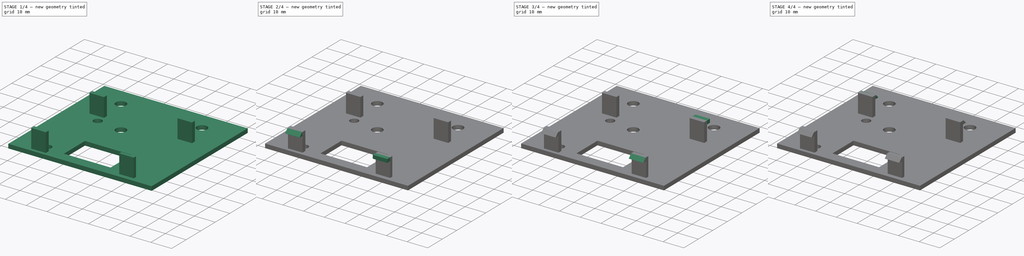
[diagram: build sequence overview — one tinted view per stage of 4, left to right]
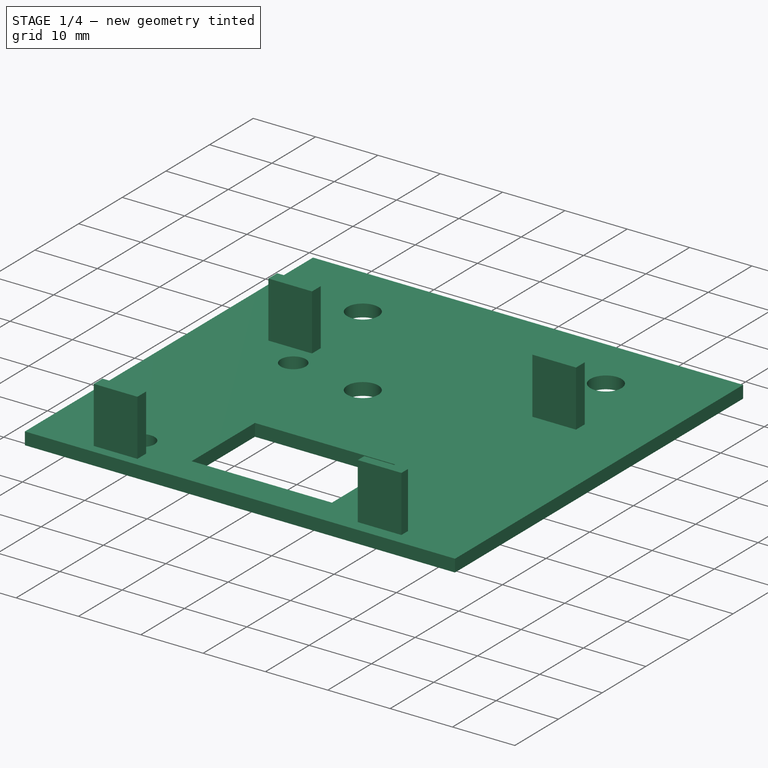
[diagram: stage 1 of 4 — iso view after this stage's code; geometry added in this stage tinted green]
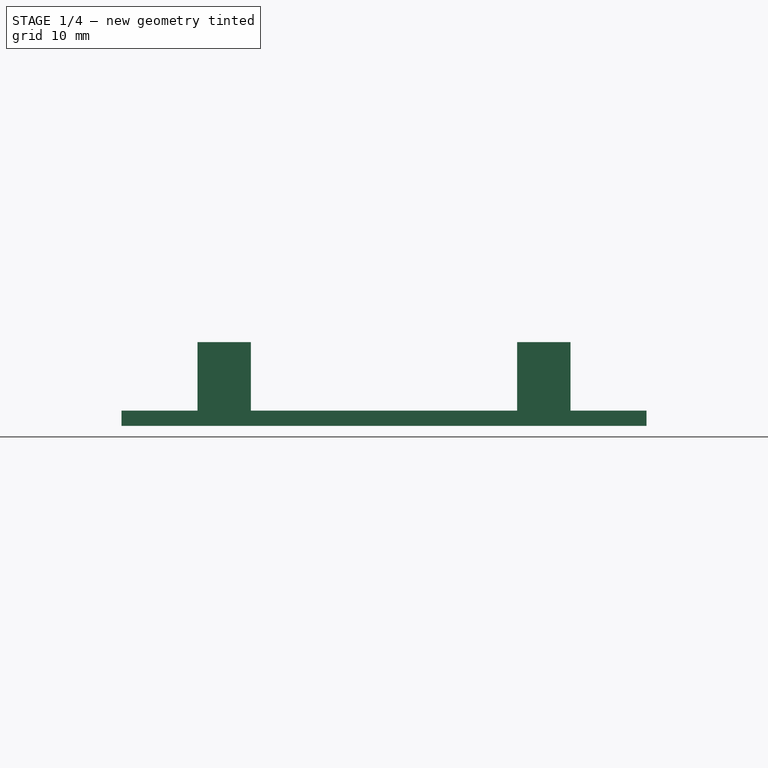
[diagram: stage 1 of 4 — front view after this stage's code; geometry added in this stage tinted green]
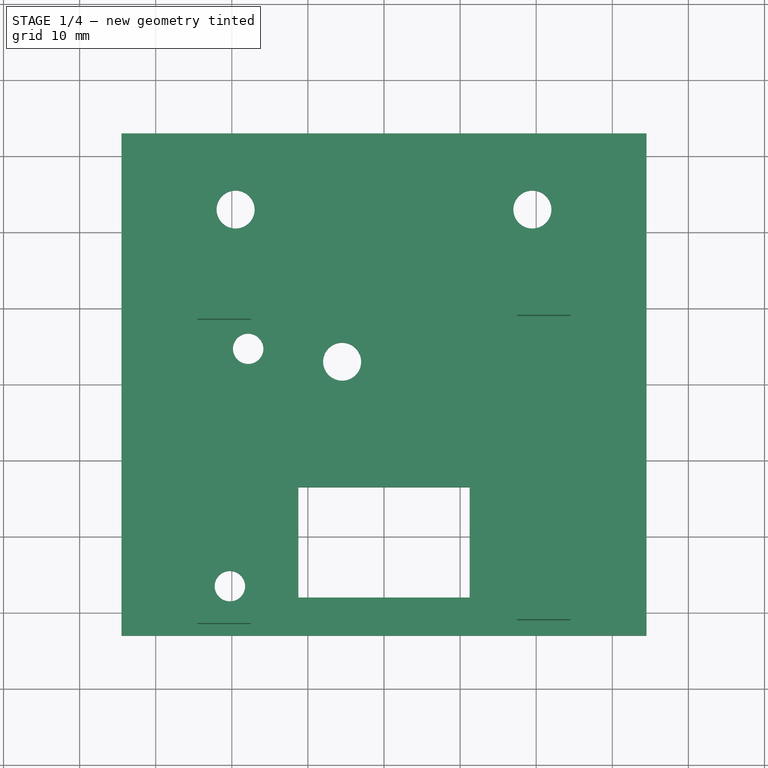
[diagram: stage 1 of 4 — top view after this stage's code; geometry added in this stage tinted green]
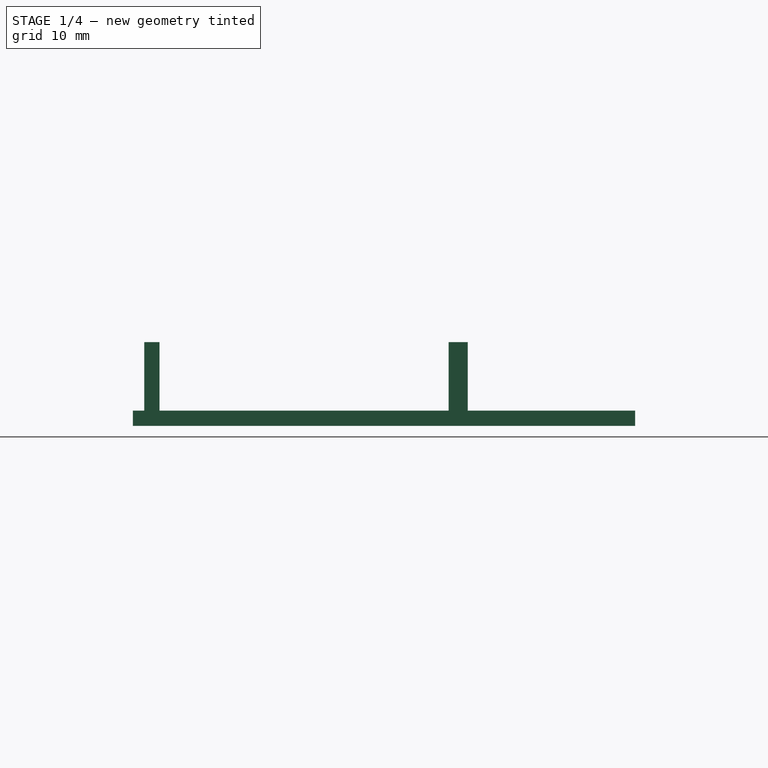
[diagram: stage 1 of 4 — right view after this stage's code; geometry added in this stage tinted green]
FCSTD DOCUMENT  (FreeCAD 0.18R4 (GitTag))
Label: Top Mounting Bracket
License: All rights reserved
LicenseURL: http://en.wikipedia.org/wiki/All_rights_reserved
objects: Sketcher::SketchObject×7, PartDesign::Pad×6, PartDesign::Chamfer×4, PartDesign::Pocket×1, PartDesign::Body×1
note: 26 computed .brp shape members not serialized (recipe doc carries the construction recipe); baked Part::Feature solids carry a one-line shape summary decoded from their .brp

FEATURE [Sketcher::SketchObject] Sketch  label="top_with_holes_Sketch"
  MapMode = 5
  Support = -> [XY_Plane]
  sketch-geometry (12):
    g0: LineSegment StartX=-34.5 StartY=33 StartZ=0 EndX=34.5 EndY=33 EndZ=0
    g1: LineSegment StartX=34.5 StartY=33 StartZ=0 EndX=34.5 EndY=-33 EndZ=0
    g2: LineSegment StartX=34.5 StartY=-33 StartZ=0 EndX=-34.5 EndY=-33 EndZ=0
    g3: LineSegment StartX=-34.5 StartY=-33 StartZ=0 EndX=-34.5 EndY=33 EndZ=0
    g4: Circle CenterX=-19.5 CenterY=23 CenterZ=0 NormalX=0 NormalY=0 NormalZ=1 AngleXU=0 Radius=2.5
    g5: Circle CenterX=19.5 CenterY=23 CenterZ=0 NormalX=0 NormalY=0 NormalZ=1 AngleXU=0 Radius=2.5
    g6: LineSegment StartX=-11.25 StartY=-13.5 StartZ=0 EndX=11.25 EndY=-13.5 EndZ=0
    g7: LineSegment StartX=11.25 StartY=-13.5 StartZ=0 EndX=11.25 EndY=-28 EndZ=0
    g8: LineSegment StartX=11.25 StartY=-28 StartZ=0 EndX=-11.25 EndY=-28 EndZ=0
    g9: LineSegment StartX=-11.25 StartY=-28 StartZ=0 EndX=-11.25 EndY=-13.5 EndZ=0
    g10: Circle CenterX=-20.25 CenterY=-26.5 CenterZ=0 NormalX=0 NormalY=0 NormalZ=1 AngleXU=0 Radius=2
    g11: Circle CenterX=-17.85 CenterY=4.7 CenterZ=0 NormalX=0 NormalY=0 NormalZ=1 AngleXU=0 Radius=2
  constraints (34):
    c: Coincident(g0,g1)
    c: Coincident(g1,g2)
    c: Coincident(g2,g3)
    c: Coincident(g3,g0)
    c: Diameter(g5) = 5
    c: Diameter(g4) = 5
    c: DistanceX(g0,g4) = 15
    c: DistanceY(g4,g0) = 10
    c: DistanceY(g5,g0) = 10
    c: DistanceX(g2,g1) = 69
    c: DistanceY(g1,g0) = 66
    c: DistanceX(g5,g0) = 15
    c: Coincident(g6,g7)
    c: Coincident(g7,g8)
    c: Coincident(g8,g9)
    c: Coincident(g9,g6)
    c: Horizontal(g6)
    c: Vertical(g7)
    c: DistanceX(g6,g6) = 22.5
    c: DistanceY(g7,g7) = 14.5
    c: DistanceX(g7,g1) = 23.25
    c: DistanceY(g2,g8) = 5
    c: Symmetric(g2,g1,g-2)
    c: Equal(g9,g7)
    c: Equal(g6,g8)
    c: Equal(g3,g1)
    c: Equal(g0,g2)
    c: Symmetric(g0,g2,g-1)
    c: Diameter(g10) = 4
    c: DistanceY(g2,g10) = 6.5
    c: DistanceX(g10,g8) = 9
    c: DistanceY(g6,g11) = 18.2
    c: DistanceX(g11,g6) = 6.6
    c: Diameter(g11) = 4
FEATURE [PartDesign::Pad] Pad
  Length = 2
  Length2 = 100
  Profile = -> Sketch
  Type = 0
FEATURE [Sketcher::SketchObject] Sketch011  label="Voltage Adjustment"
  MapMode = 5
  Placement = pos=(0,0,2) rot=(0,0,1;0rad)
  sketch-geometry (1):
    g0: Circle CenterX=-5.5 CenterY=3 CenterZ=0 NormalX=0 NormalY=0 NormalZ=1 AngleXU=0 Radius=2.5
  constraints (1):
    c: Diameter(g0) = 5
FEATURE [PartDesign::Pocket] Pocket  label="V_Adj_hole"
  BaseFeature = -> Pad
  Length = 2
  Length2 = 100
  Profile = -> Sketch011
  Type = 0
FEATURE [Sketcher::SketchObject] Sketch012  label="Clip Risers"
  ExternalGeometry = -> [Pocket]
  MapMode = 5
  Placement = pos=(0,0,2) rot=(0,0,1;0rad)
  Support = -> [Pocket]
  sketch-geometry (16):
    g0: LineSegment StartX=-24.5 StartY=10.5 StartZ=0 EndX=-17.5 EndY=10.5 EndZ=0
    g1: LineSegment StartX=-17.5 StartY=10.5 StartZ=0 EndX=-17.5 EndY=8.5 EndZ=0
    g2: LineSegment StartX=-17.5 StartY=8.5 StartZ=0 EndX=-24.5 EndY=8.5 EndZ=0
    g3: LineSegment StartX=-24.5 StartY=8.5 StartZ=0 EndX=-24.5 EndY=10.5 EndZ=0
    g4: LineSegment StartX=17.5 StartY=-29.5 StartZ=0 EndX=24.5 EndY=-29.5 EndZ=0
    g5: LineSegment StartX=24.5 StartY=-29.5 StartZ=0 EndX=24.5 EndY=-31 EndZ=0
    g6: LineSegment StartX=24.5 StartY=-31 StartZ=0 EndX=17.5 EndY=-31 EndZ=0
    g7: LineSegment StartX=17.5 StartY=-31 StartZ=0 EndX=17.5 EndY=-29.5 EndZ=0
    g8: LineSegment StartX=17.5 StartY=11 StartZ=0 EndX=24.5 EndY=11 EndZ=0
    g9: LineSegment StartX=24.5 StartY=11 StartZ=0 EndX=24.5 EndY=9 EndZ=0
    g10: LineSegment StartX=24.5 StartY=9 StartZ=0 EndX=17.5 EndY=9 EndZ=0
    g11: LineSegment StartX=17.5 StartY=9 StartZ=0 EndX=17.5 EndY=11 EndZ=0
    g12: LineSegment StartX=-24.5 StartY=-29.5 StartZ=0 EndX=-17.5 EndY=-29.5 EndZ=0
    g13: LineSegment StartX=-17.5 StartY=-29.5 StartZ=0 EndX=-17.5 EndY=-31.5 EndZ=0
    g14: LineSegment StartX=-17.5 StartY=-31.5 StartZ=0 EndX=-24.5 EndY=-31.5 EndZ=0
    g15: LineSegment StartX=-24.5 StartY=-31.5 StartZ=0 EndX=-24.5 EndY=-29.5 EndZ=0
  constraints (49):
    c: Coincident(g0,g1)
    c: Coincident(g1,g2)
    c: Coincident(g2,g3)
    c: Coincident(g3,g0)
    c: Horizontal(g0)
    c: Horizontal(g2)
    c: Vertical(g1)
    c: Vertical(g3)
    c: DistanceX(g2,g2) = 7
    c: DistanceY(g1,g0) = 2
    c: Coincident(g4,g5)
    c: Coincident(g5,g6)
    c: Coincident(g6,g7)
    c: Coincident(g7,g4)
    c: Horizontal(g4)
    c: Horizontal(g6)
    c: Vertical(g5)
    c: Vertical(g7)
    c: Equal(g2,g6) = 8
    c: DistanceY(g5,g4) = 1.5
    c: Coincident(g8,g9)
    c: Coincident(g9,g10)
    c: Coincident(g10,g11)
    c: Coincident(g11,g8)
    c: Horizontal(g8)
    c: Horizontal(g10)
    c: Vertical(g9)
    c: Vertical(g11)
    c: Equal(g2,g10) = 8
    c: DistanceY(g9,g8) = 2
    c: Coincident(g12,g13)
    c: Coincident(g13,g14)
    c: Coincident(g14,g15)
    c: Coincident(g15,g12)
    c: Horizontal(g12)
    c: Horizontal(g14)
    c: Vertical(g13)
    c: Vertical(g15)
    c: Equal(g2,g14) = 8
    c: DistanceY(g13,g12) = 2
    c: DistanceY(g-4,g14) = 1.5
    c: DistanceY(g-5,g5) = 2
    c: DistanceY(g14,g0) = 42
    c: DistanceY(g5,g8) = 42
    c: DistanceX(g-4,g14) = 10
    c: DistanceX(g-5) = 34.5
    c: DistanceX(g4,g-5) = 10
    c: DistanceX(g9,g-5) = 10
    c: DistanceX(g-4,g0) = 10
FEATURE [PartDesign::Pad] Pad001
  BaseFeature = -> Pocket
  Length = 9
  Length2 = 100
  Profile = -> Sketch012
  Type = 0
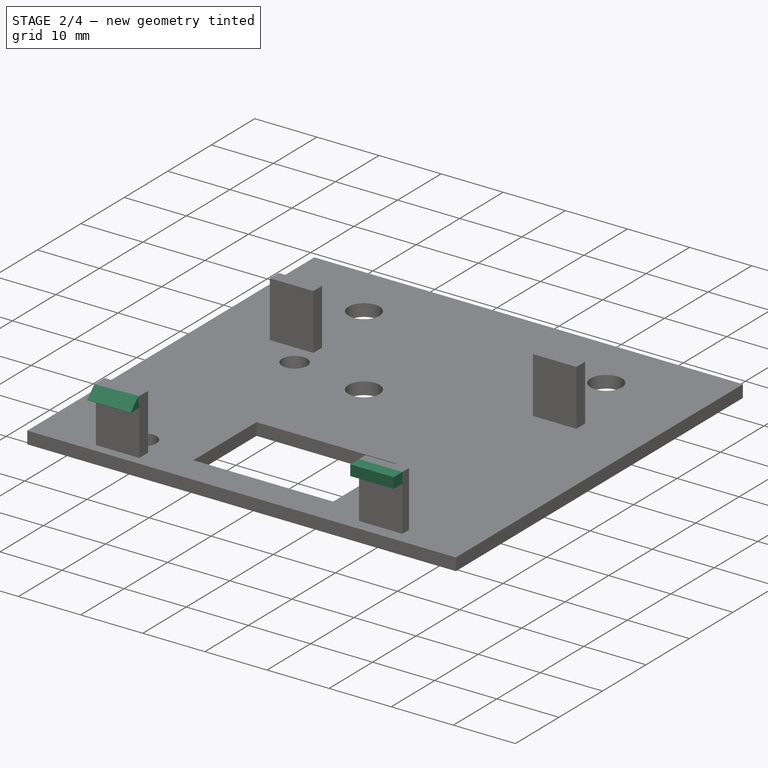
[diagram: stage 2 of 4 — iso view after this stage's code; geometry added in this stage tinted green]
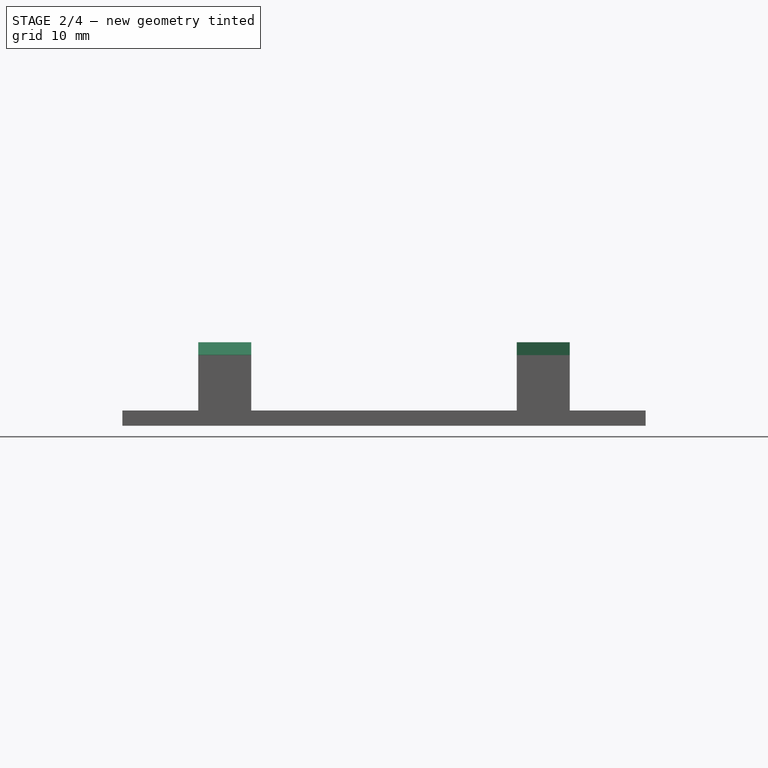
[diagram: stage 2 of 4 — front view after this stage's code; geometry added in this stage tinted green]
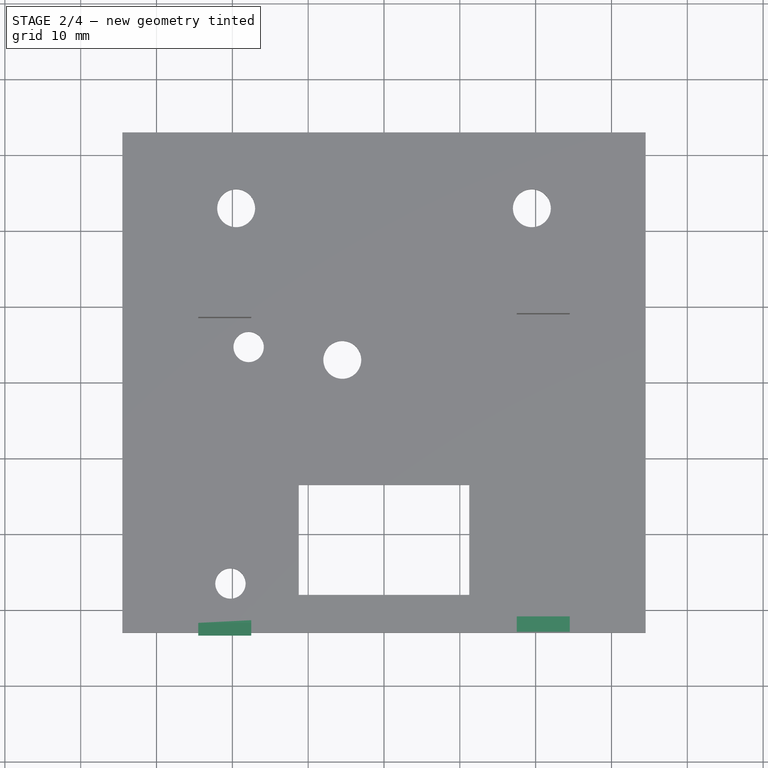
[diagram: stage 2 of 4 — top view after this stage's code; geometry added in this stage tinted green]
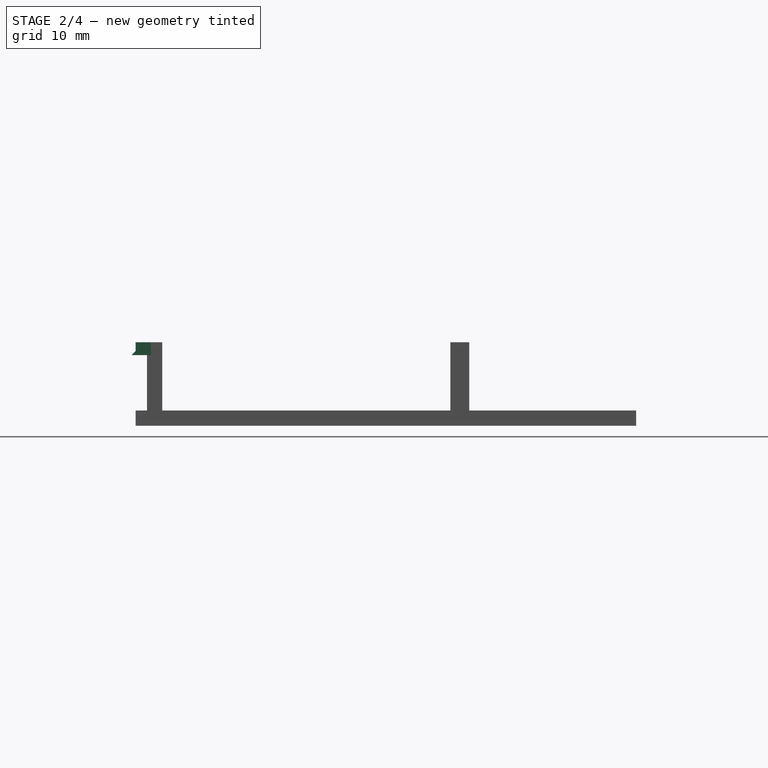
[diagram: stage 2 of 4 — right view after this stage's code; geometry added in this stage tinted green]
FEATURE [Sketcher::SketchObject] Sketch013  label="Front Left Snap"
  ExternalGeometry = -> [Pad001]
  MapMode = 5
  Placement = pos=(0,-31.5,0) rot=(1,0,0;1.5708rad)
  Support = -> [Pad001]
  sketch-geometry (4):
    g0: LineSegment StartX=-24.5 StartY=11 StartZ=0 EndX=-17.5 EndY=11 EndZ=0
    g1: LineSegment StartX=-17.5 StartY=11 StartZ=0 EndX=-17.5 EndY=9.3 EndZ=0
    g2: LineSegment StartX=-17.5 StartY=9.3 StartZ=0 EndX=-24.5 EndY=9.3 EndZ=0
    g3: LineSegment StartX=-24.5 StartY=9.3 StartZ=0 EndX=-24.5 EndY=11 EndZ=0
  constraints (10):
    c: Coincident(g0,g1)
    c: Coincident(g1,g2)
    c: Coincident(g2,g3)
    c: Coincident(g3,g0)
    c: Horizontal(g2)
    c: Vertical(g1)
    c: Vertical(g3)
    c: Coincident(g0,g-3)
    c: Coincident(g0,g-4)
    c: DistanceY(g1,g0) = 1.7
FEATURE [PartDesign::Pad] Pad002
  BaseFeature = -> Pad001
  Length = 2
  Length2 = 100
  Profile = -> Sketch013
  Type = 0
FEATURE [PartDesign::Chamfer] Chamfer
  Base = -> Pad002 [Edge98]
  BaseFeature = -> Pad002
  Size = 1.65
FEATURE [Sketcher::SketchObject] Sketch014  label="Front Right Snap"
  ExternalGeometry = -> [Chamfer]
  MapMode = 5
  Placement = pos=(0,-31,0) rot=(1,0,0;1.5708rad)
  Support = -> [Chamfer]
  sketch-geometry (4):
    g0: LineSegment StartX=17.5 StartY=11 StartZ=0 EndX=24.5 EndY=11 EndZ=0
    g1: LineSegment StartX=24.5 StartY=11 StartZ=0 EndX=24.5 EndY=9.3 EndZ=0
    g2: LineSegment StartX=24.5 StartY=9.3 StartZ=0 EndX=17.5 EndY=9.3 EndZ=0
    g3: LineSegment StartX=17.5 StartY=9.3 StartZ=0 EndX=17.5 EndY=11 EndZ=0
  constraints (10):
    c: Coincident(g0,g1)
    c: Coincident(g1,g2)
    c: Coincident(g2,g3)
    c: Coincident(g3,g0)
    c: Horizontal(g2)
    c: Vertical(g1)
    c: Vertical(g3)
    c: Coincident(g-4,g0)
    c: Coincident(g-3,g0)
    c: DistanceY(g3,g3) = 1.7
FEATURE [PartDesign::Pad] Pad003
  BaseFeature = -> Chamfer
  Length = 2
  Length2 = 100
  Profile = -> Sketch014
  Type = 0
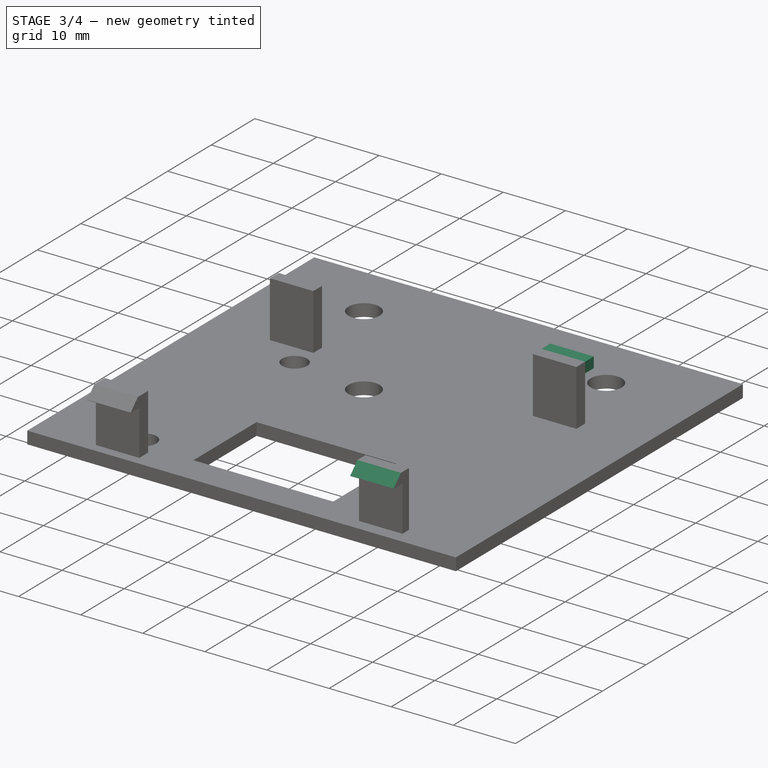
[diagram: stage 3 of 4 — iso view after this stage's code; geometry added in this stage tinted green]
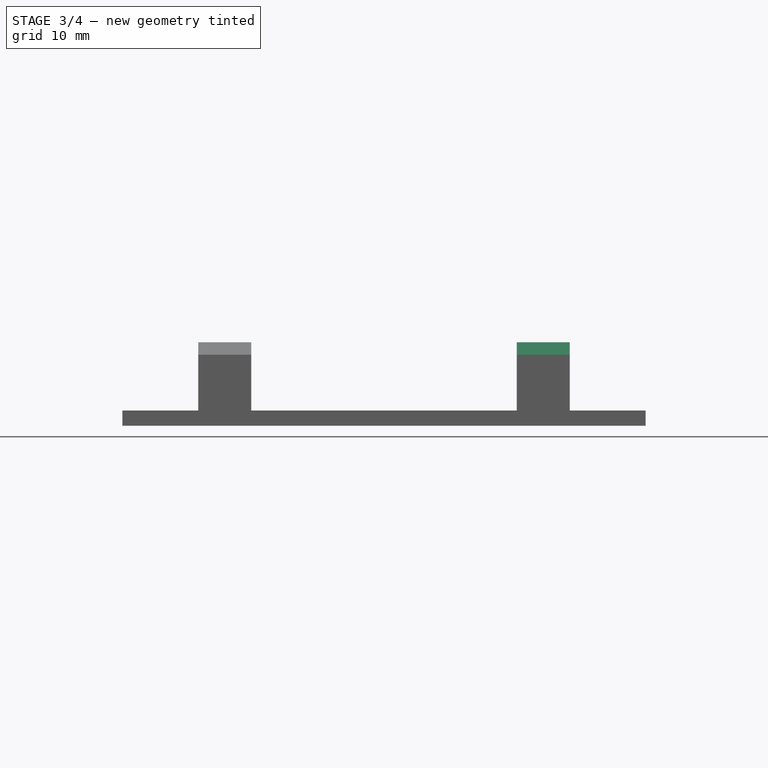
[diagram: stage 3 of 4 — front view after this stage's code; geometry added in this stage tinted green]
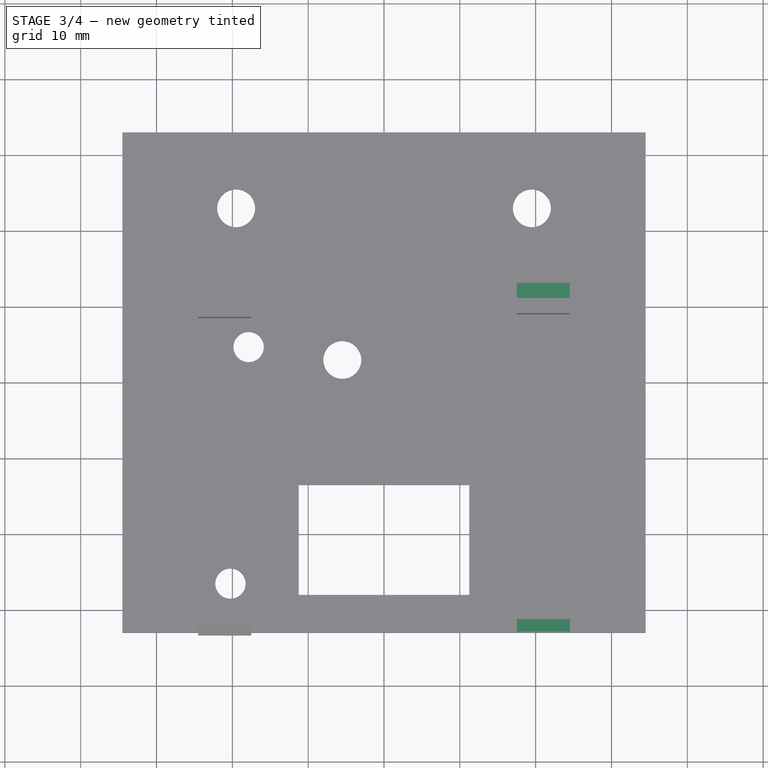
[diagram: stage 3 of 4 — top view after this stage's code; geometry added in this stage tinted green]
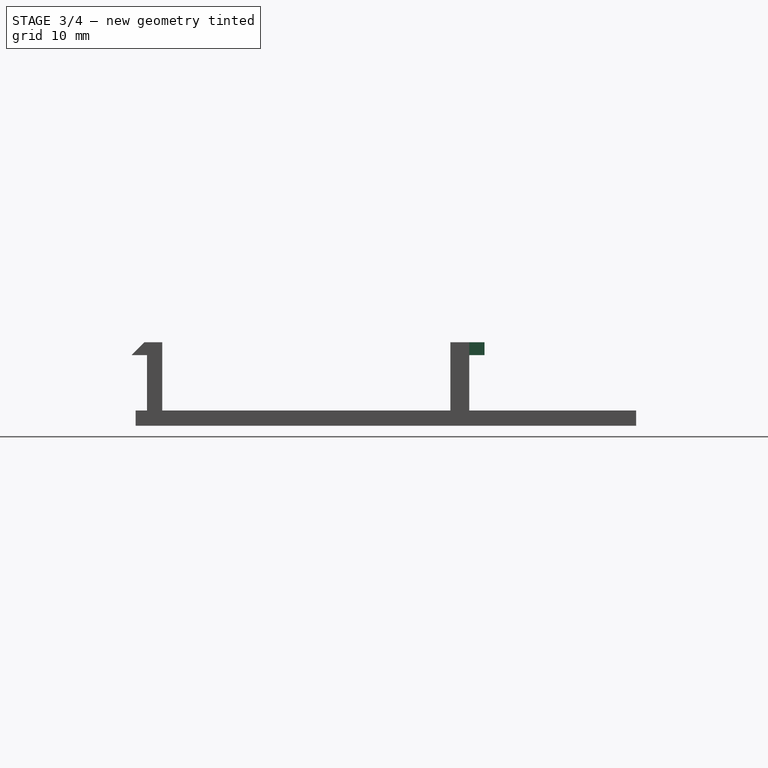
[diagram: stage 3 of 4 — right view after this stage's code; geometry added in this stage tinted green]
FEATURE [PartDesign::Chamfer] Chamfer001
  Base = -> Pad003 [Edge112]
  BaseFeature = -> Pad003
  Size = 1.65
FEATURE [Sketcher::SketchObject] Sketch015  label="Rear Left Snap"
  ExternalGeometry = -> [Pad001]
  MapMode = 5
  Placement = pos=(0,11,0) rot=(0,0.707107,0.707107;3.14159rad)
  Support = -> [Pad001]
  sketch-geometry (4):
    g0: LineSegment StartX=-24.5 StartY=11 StartZ=0 EndX=-17.5 EndY=11 EndZ=0
    g1: LineSegment StartX=-17.5 StartY=11 StartZ=0 EndX=-17.5 EndY=9.3 EndZ=0
    g2: LineSegment StartX=-17.5 StartY=9.3 StartZ=0 EndX=-24.5 EndY=9.3 EndZ=0
    g3: LineSegment StartX=-24.5 StartY=9.3 StartZ=0 EndX=-24.5 EndY=11 EndZ=0
  constraints (10):
    c: Coincident(g0,g1)
    c: Coincident(g1,g2)
    c: Coincident(g2,g3)
    c: Coincident(g3,g0)
    c: Horizontal(g2)
    c: Vertical(g1)
    c: Vertical(g3)
    c: Coincident(g0,g-3)
    c: Coincident(g-4,g0)
    c: DistanceY(g1,g1) = 1.7
FEATURE [PartDesign::Pad] Pad004
  BaseFeature = -> Chamfer001
  Length = 2
  Length2 = 100
  Profile = -> Sketch015
  Type = 0
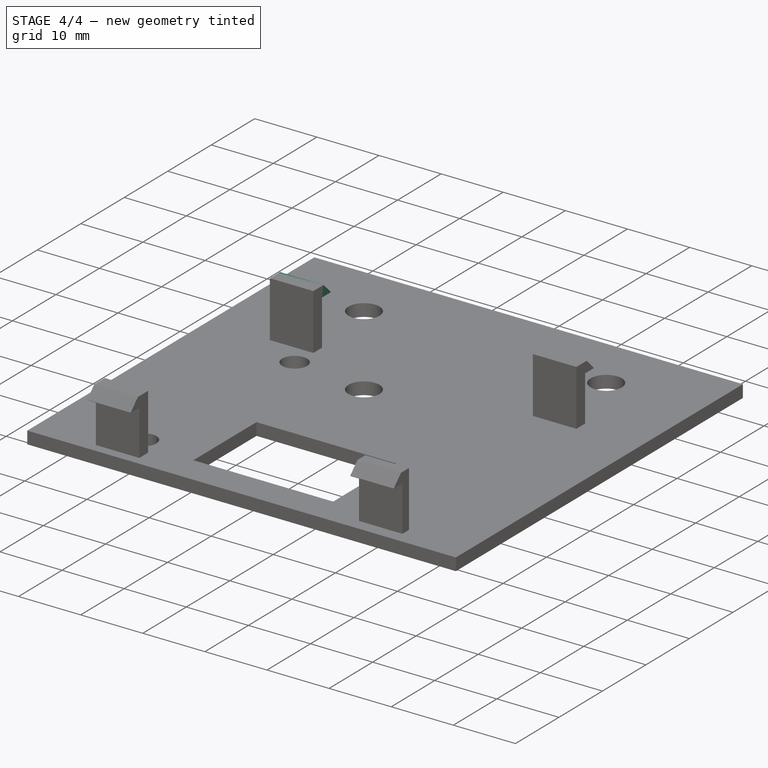
[diagram: stage 4 of 4 — iso view after this stage's code; geometry added in this stage tinted green]
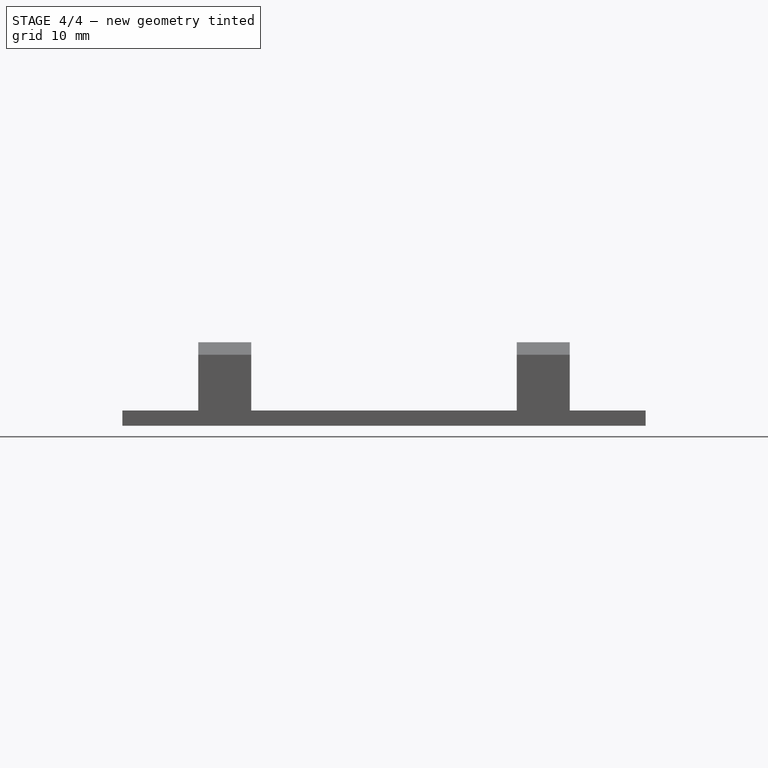
[diagram: stage 4 of 4 — front view after this stage's code; geometry added in this stage tinted green]
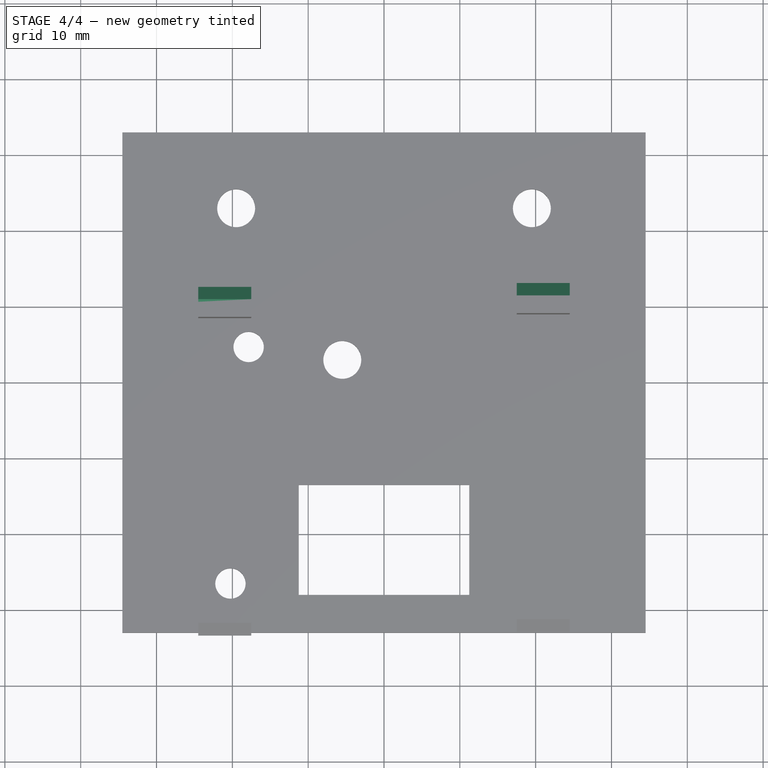
[diagram: stage 4 of 4 — top view after this stage's code; geometry added in this stage tinted green]
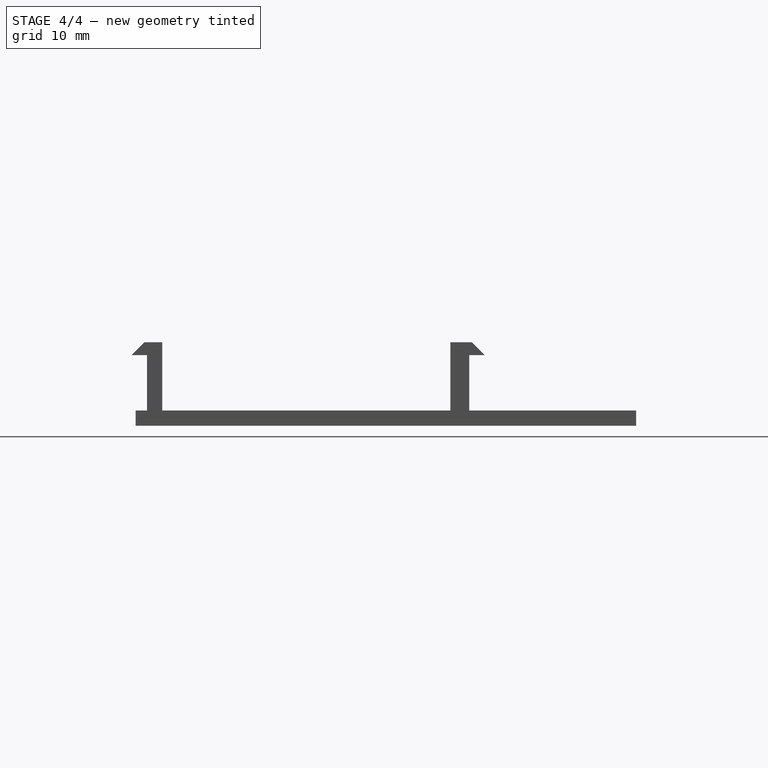
[diagram: stage 4 of 4 — right view after this stage's code; geometry added in this stage tinted green]
FEATURE [PartDesign::Chamfer] Chamfer002
  Base = -> Pad004 [Edge124]
  BaseFeature = -> Pad004
  Size = 1.65
FEATURE [Sketcher::SketchObject] Sketch016  label="Rear Right Snap"
  ExternalGeometry = -> [Chamfer002]
  MapMode = 5
  Placement = pos=(0,10.5,0) rot=(0,0.707107,0.707107;3.14159rad)
  Support = -> [Chamfer002]
  sketch-geometry (4):
    g0: LineSegment StartX=17.5 StartY=11 StartZ=0 EndX=24.5 EndY=11 EndZ=0
    g1: LineSegment StartX=24.5 StartY=11 StartZ=0 EndX=24.5 EndY=9.3 EndZ=0
    g2: LineSegment StartX=24.5 StartY=9.3 StartZ=0 EndX=17.5 EndY=9.3 EndZ=0
    g3: LineSegment StartX=17.5 StartY=9.3 StartZ=0 EndX=17.5 EndY=11 EndZ=0
  constraints (10):
    c: Coincident(g0,g1)
    c: Coincident(g1,g2)
    c: Coincident(g2,g3)
    c: Coincident(g3,g0)
    c: Horizontal(g2)
    c: Vertical(g1)
    c: Vertical(g3)
    c: Coincident(g-3,g0)
    c: Coincident(g-4,g0)
    c: DistanceY(g3,g3) = 1.7
FEATURE [PartDesign::Pad] Pad005
  BaseFeature = -> Chamfer002
  Length = 2
  Length2 = 100
  Profile = -> Sketch016
  Type = 0
FEATURE [PartDesign::Chamfer] Chamfer003
  Base = -> Pad005 [Edge138]
  BaseFeature = -> Pad005
  Size = 1.65
FEATURE [PartDesign::Body] Body
  Group = -> [Sketch,Pad,Sketch011,Pocket,Pad001,Sketch013,Pad002,Chamfer,Sketch014,Pad003,Chamfer001,Sketch015,Pad004,Chamfer002,Sketch016,Pad005,Chamfer003]
  Origin = -> Origin
  Tip = -> Chamfer003
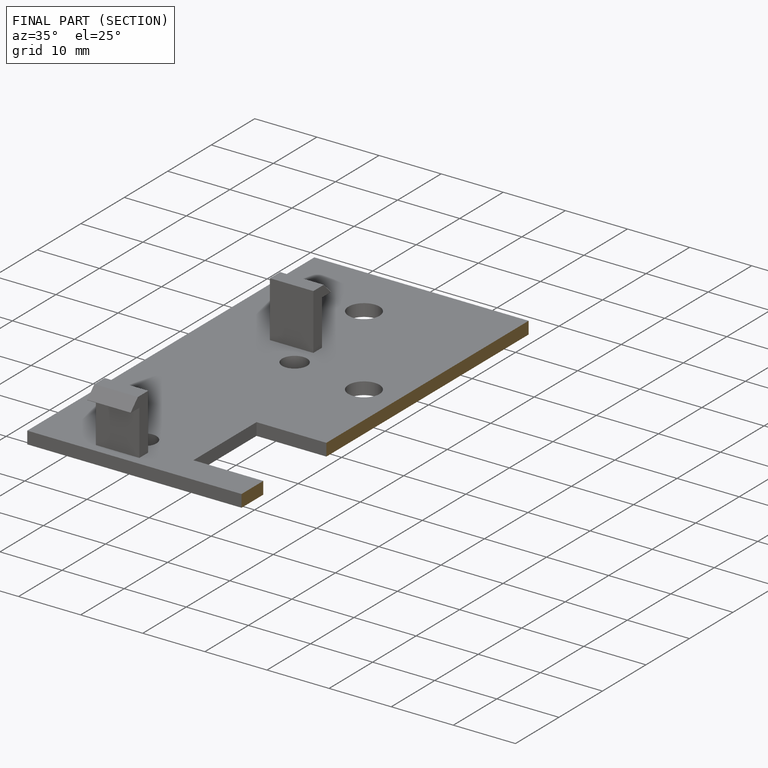
[diagram: finished part — half-section view (interior)]
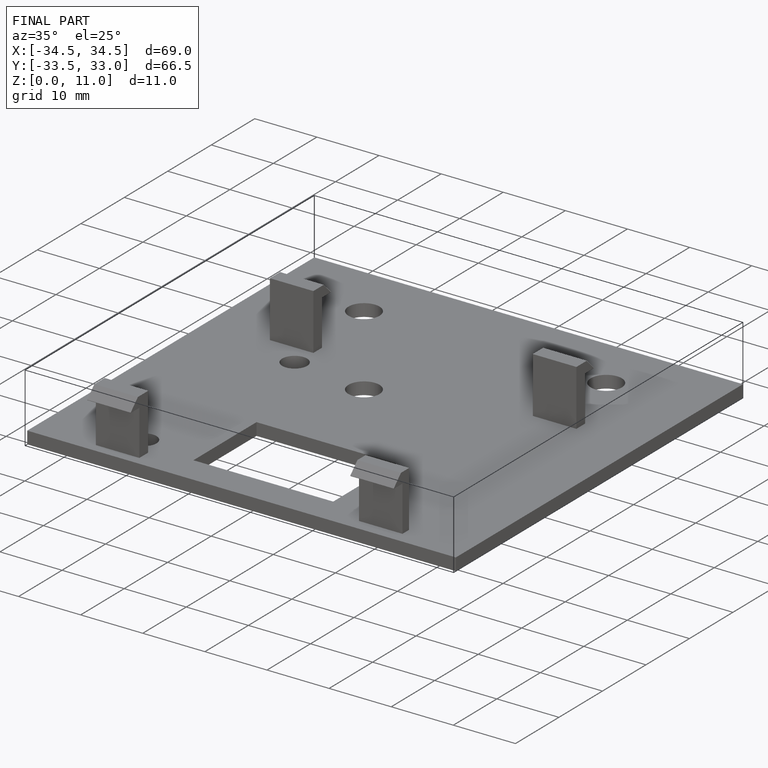
[diagram: finished part — iso view with bounding-box wireframe]
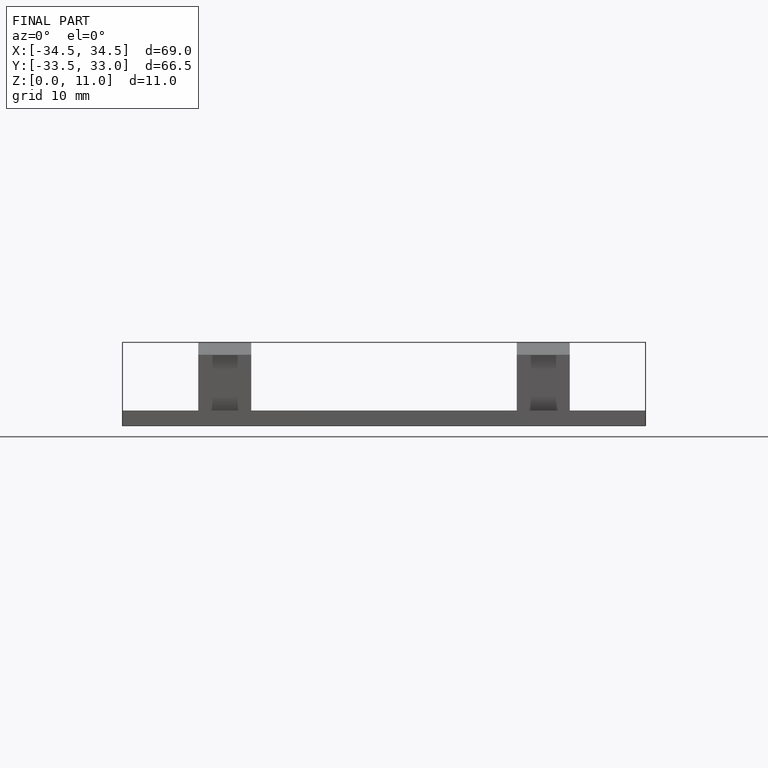
[diagram: finished part — front view with bounding-box wireframe]
